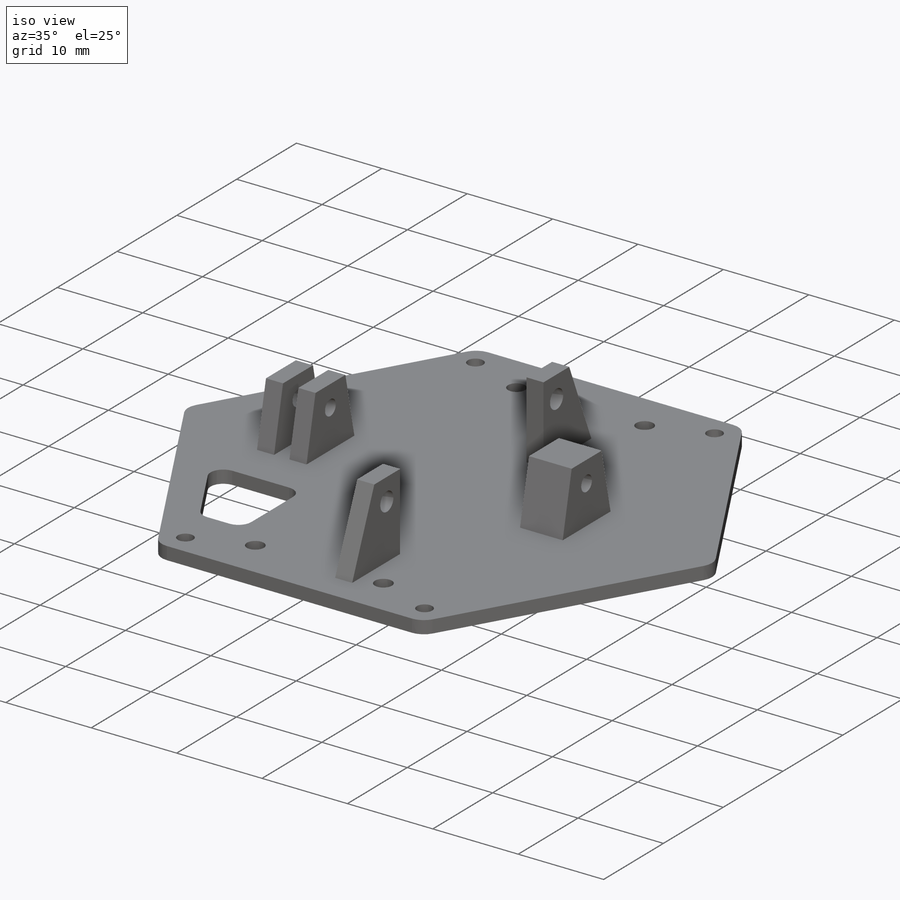
[diagram: iso view]
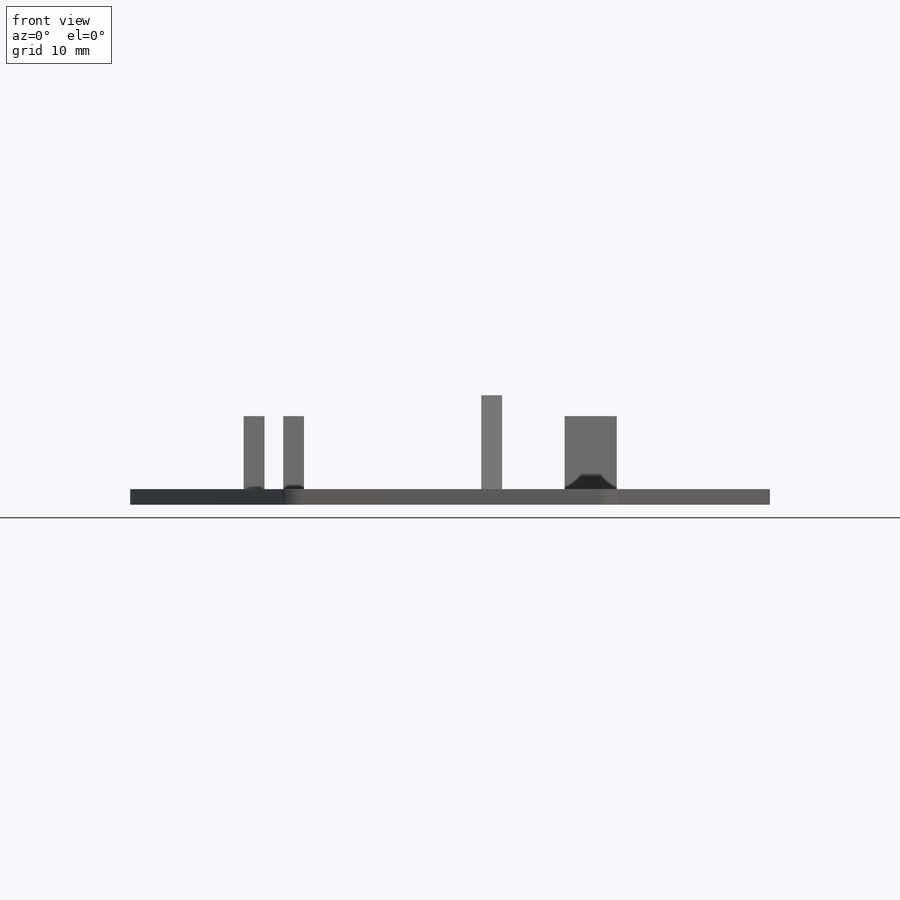
[diagram: front view]
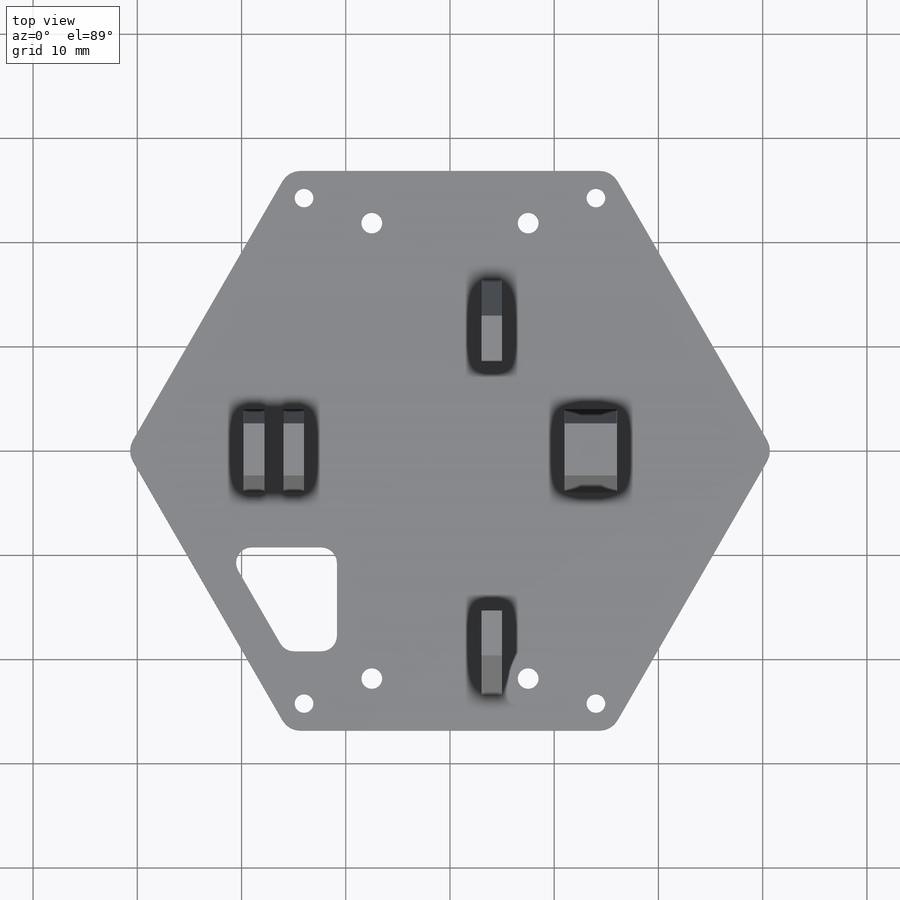
[diagram: top view]
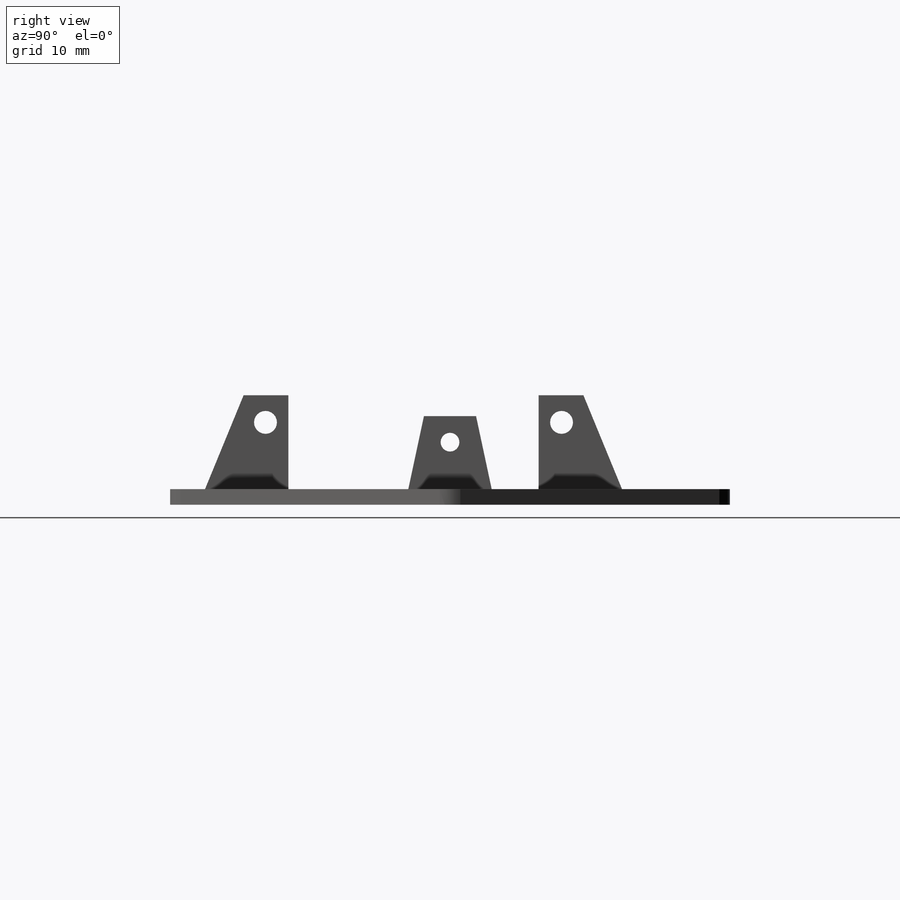
[diagram: right view]
SOLIDWORKS PART (.sldprt)
format: sldprt  version: not decoded by parser v0  size: 423,424 bytes
history: native  units: mm
features: sketch x8, plane x6, extrude x5, cut_extrude x3, material x1, mirror x1, fillet x1 (+10 scaffold rows collapsed)
feature tree (35):
  scaffold x10  (default folders/planes/origin — collapsed)
  material  "材质 <未指定>"
  plane  "前视基准面"
  plane  "上视基准面"
  plane  "右视基准面"
  sketch  "草图1"  dims[c1.D5=2.5mm c1.D2=2.0mm c1.D1=54.0mm c2.D2=41.6mm c2.D3=12.0mm c2.D4=9.0mm c2.D6=48.5mm c2.D7=28.0mm c2.D8=12.0mm c2.D9=15.5mm c2.D10=14.0mm c2.D1=31.0mm c3.D3=48.5mm c3.D4=26.5mm c3.D5=8.0mm]
  extrude  "凸台-拉伸1"  Depth=1.5mm
  plane  "基准面1"  Offset=16mm
  plane  "基准面2"  Offset=1.8mm
  sketch  "草图3"  dims[D1=1.8mm D2=8.0mm D3=5.0mm D4=4.5mm D5=7.0mm D6=28.0mm D7=6.0mm]
  extrude  "凸台-拉伸2"  Depth=2mm
  sketch  "草图4"  dims[D1=0.0mm D2=0.0mm]
  extrude  "凸台-拉伸3"  Depth=2mm
  mirror  "镜向3"
  plane  "基准面3"  Offset=5mm
  sketch  "草图5"  dims[D1=2.2mm D2=6.4mm D3=9.0mm D4=2.2mm D5=4.3mm D6=8.0mm D7=24.0mm D8=3.5mm D9=29.0mm]
  extrude  "凸台-拉伸4"  Depth=2mm
  fillet  "圆角1"  Radius=2mm
  sketch  "草图6"  dims[c1.D1=1.8mm c1.D7=1.5mm c1.D8=1.5mm c1.D2=28.0mm c1.D3=48.5mm c1.D4=4.0mm c1.D5=10.0mm c1.D6=8.0mm c2.D4=5.0mm c2.D5=10.0mm c2.D6=8.0mm c2.D7=4.0mm c3.D6=3.5mm c3.D7=5.0mm]
  cut_extrude  "切除-拉伸1"  Depth=10mm
  sketch  "草图7"  dims[D1=2.0mm D2=15.0mm D3=5.0mm]
  cut_extrude  "切除-拉伸2"  Depth=10mm
  sketch  "草图8"  dims[D1=0.0mm]
  extrude  "凸台-拉伸5"  Depth=3mm
  sketch  "草图9"  dims[D1=0.0mm]
  cut_extrude  "切除-拉伸3"  Depth=3mm
decode coverage: 17 of 18 modeling features carry decoded parameters
note: suppression state not decoded; provenance and decode notes live in map.json
